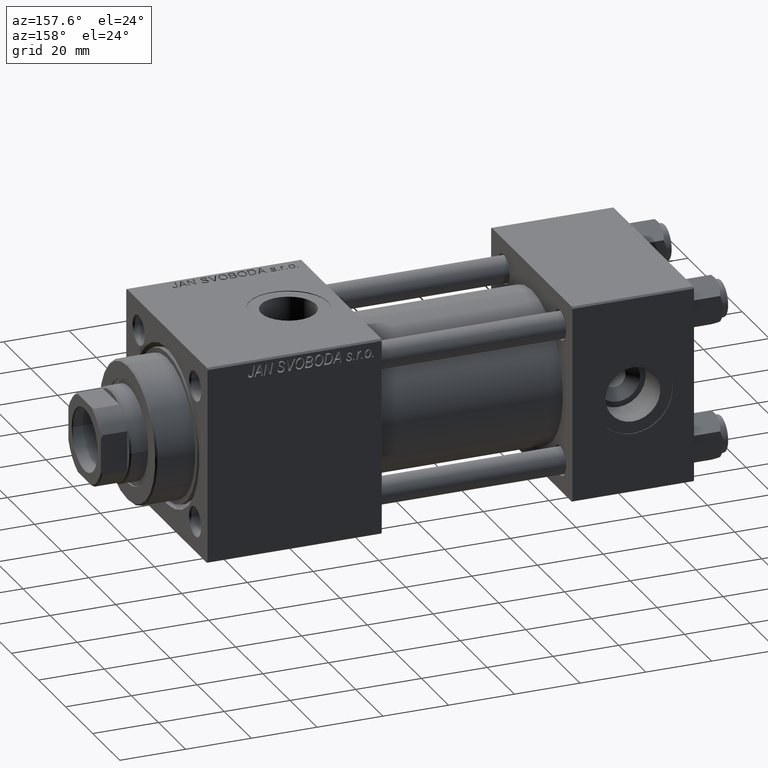
[diagram: clean part render]
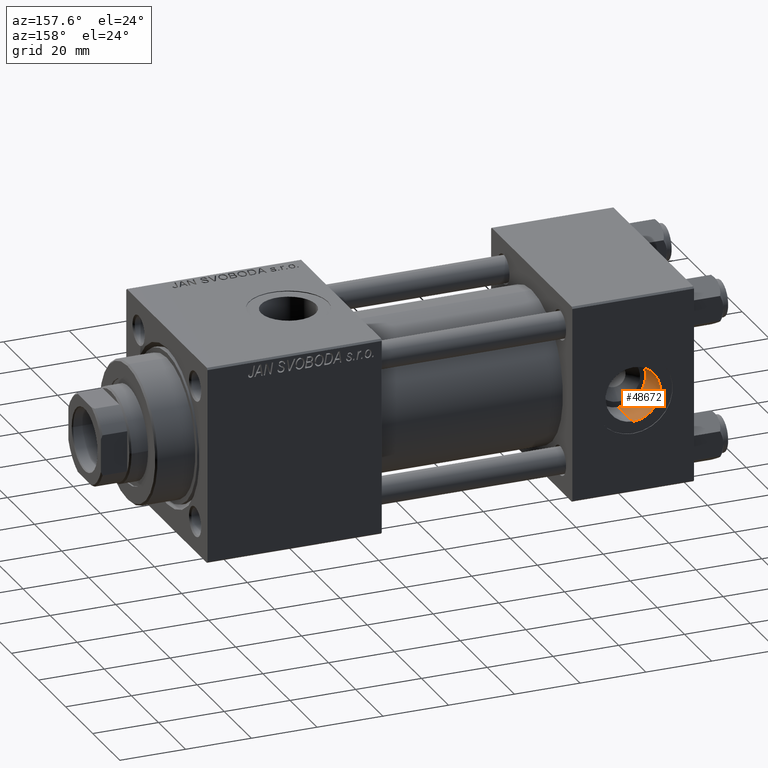
[diagram: same view with one face highlighted and labeled with its STEP entity id]
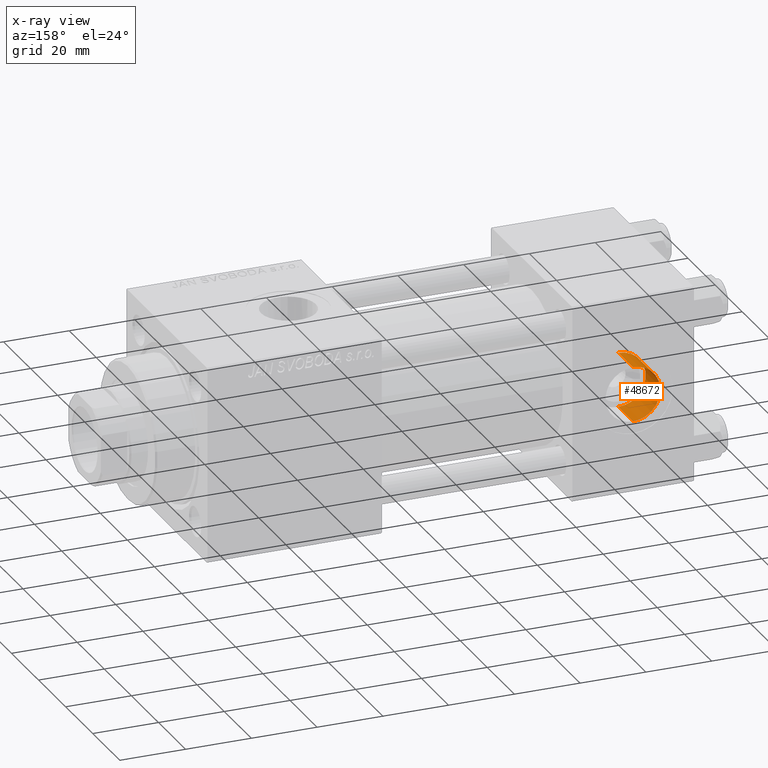
[diagram: x-ray of the same camera — body ghosted, the highlighted face saturated]
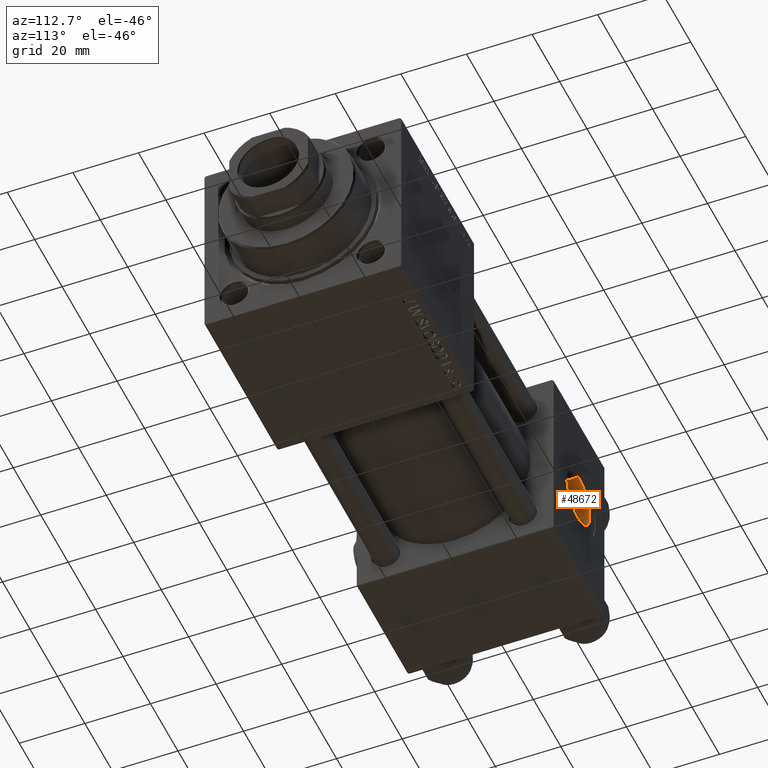
[diagram: same view with one face highlighted and labeled with its STEP entity id]
A machine part, auxiliary view. The second image highlights one B-rep face of the part: STEP entity #48672.
The next image is the same camera in x-ray: the body ghosted, the highlighted face saturated — about 0% of this face is hidden behind the body in this view.
A second angle (auxiliary view) of the same face is appended — the face is thin or edge-on in the first view.
In plain terms, the highlighted cylindrical surface (edge-blend (fillet) strip) has radius 8.33 mm, axis along (0, 1, 0).
Its self-contained STEP definition (entity closure, byte-faithful):
#265 = VECTOR ( 'NONE', #10292, 1000.000000000000000 ) ;
#794 = EDGE_CURVE ( 'NONE', #13081, #51711, #4336, .T. ) ;
#2787 = ORIENTED_EDGE ( 'NONE', *, *, #15717, .F. ) ;
#4064 = EDGE_CURVE ( 'NONE', #39895, #13081, #15546, .T. ) ;
#4336 = CIRCLE ( 'NONE', #46300, 8.330000000000001847 ) ;
#4454 = AXIS2_PLACEMENT_3D ( 'NONE', #28752, #44780, #48981 ) ;
#6328 = AXIS2_PLACEMENT_3D ( 'NONE', #44021, #44282, #20119 ) ;
#7758 = CARTESIAN_POINT ( 'NONE',  ( 18.50000000000000000, 29.79999999999999361, 8.330000000000001847 ) ) ;
#9970 = DIRECTION ( 'NONE',  ( 0.000000000000000000, 0.000000000000000000, 1.000000000000000000 ) ) ;
#10292 = DIRECTION ( 'NONE',  ( -0.000000000000000000, 1.000000000000000000, -0.000000000000000000 ) ) ;
#11564 = LINE ( 'NONE', #31240, #45098 ) ;
#13081 = VERTEX_POINT ( 'NONE', #24534 ) ;
#15546 = LINE ( 'NONE', #23404, #265 ) ;
#15717 = EDGE_CURVE ( 'NONE', #51280, #51711, #11564, .T. ) ;
#17024 = CARTESIAN_POINT ( 'NONE',  ( 18.50000000000000000, 18.99999999999999289, 8.330000000000001847 ) ) ;
#19176 = DIRECTION ( 'NONE',  ( -0.000000000000000000, 1.000000000000000000, -0.000000000000000000 ) ) ;
#20119 = DIRECTION ( 'NONE',  ( 0.000000000000000000, 0.000000000000000000, 1.000000000000000000 ) ) ;
#22456 = EDGE_LOOP ( 'NONE', ( #33178, #48719, #29626, #2787 ) ) ;
#23404 = CARTESIAN_POINT ( 'NONE',  ( 18.50000000000000000, 18.99999999999999289, -8.330000000000001847 ) ) ;
#24534 = CARTESIAN_POINT ( 'NONE',  ( 18.50000000000000000, 29.79999999999999361, -8.330000000000001847 ) ) ;
#24952 = CARTESIAN_POINT ( 'NONE',  ( 18.50000000000000000, 18.99999999999999289, -8.330000000000001847 ) ) ;
#28752 = CARTESIAN_POINT ( 'NONE',  ( 18.50000000000000000, 18.99999999999999289, 0.000000000000000000 ) ) ;
#29626 = ORIENTED_EDGE ( 'NONE', *, *, #794, .T. ) ;
#30714 = DIRECTION ( 'NONE',  ( 0.000000000000000000, 1.000000000000000000, 0.000000000000000000 ) ) ;
#31240 = CARTESIAN_POINT ( 'NONE',  ( 18.50000000000000000, 18.99999999999999289, 8.330000000000001847 ) ) ;
#32952 = CYLINDRICAL_SURFACE ( 'NONE', #6328, 8.330000000000001847 ) ;
#33178 = ORIENTED_EDGE ( 'NONE', *, *, #41420, .F. ) ;
#34393 = CARTESIAN_POINT ( 'NONE',  ( 18.50000000000000000, 29.79999999999999361, 0.000000000000000000 ) ) ;
#39895 = VERTEX_POINT ( 'NONE', #24952 ) ;
#40840 = FACE_OUTER_BOUND ( 'NONE', #22456, .T. ) ;
#41420 = EDGE_CURVE ( 'NONE', #39895, #51280, #49746, .T. ) ;
#44021 = CARTESIAN_POINT ( 'NONE',  ( 18.50000000000000000, 18.99999999999999289, 0.000000000000000000 ) ) ;
#44282 = DIRECTION ( 'NONE',  ( -0.000000000000000000, 1.000000000000000000, -0.000000000000000000 ) ) ;
#44780 = DIRECTION ( 'NONE',  ( 0.000000000000000000, 1.000000000000000000, 0.000000000000000000 ) ) ;
#45098 = VECTOR ( 'NONE', #19176, 1000.000000000000000 ) ;
#46300 = AXIS2_PLACEMENT_3D ( 'NONE', #34393, #30714, #9970 ) ;
#48672 = ADVANCED_FACE ( 'NONE', ( #40840 ), #32952, .F. ) ;
#48719 = ORIENTED_EDGE ( 'NONE', *, *, #4064, .T. ) ;
#48981 = DIRECTION ( 'NONE',  ( 0.000000000000000000, 0.000000000000000000, 1.000000000000000000 ) ) ;
#49746 = CIRCLE ( 'NONE', #4454, 8.330000000000001847 ) ;
#51280 = VERTEX_POINT ( 'NONE', #17024 ) ;
#51711 = VERTEX_POINT ( 'NONE', #7758 ) ;